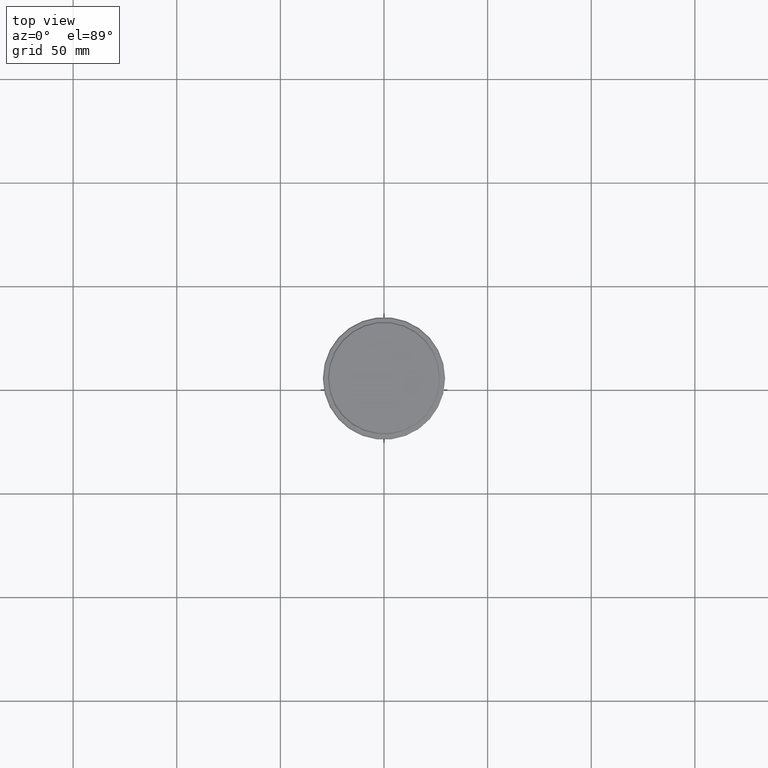
[diagram: clean part render]
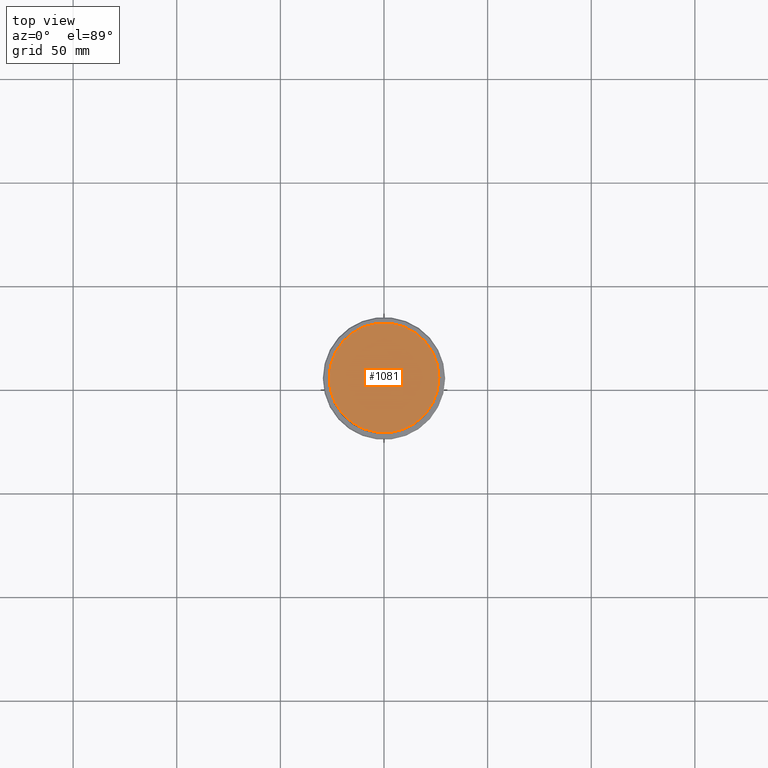
[diagram: same view with one face highlighted and labeled with its STEP entity id]
A machine part, top view. The second image highlights one B-rep face of the part: STEP entity #1081.
In plain terms, the highlighted planar face has unit normal (0, -0, 1).
Its self-contained STEP definition (entity closure, byte-faithful):
#143 = DIRECTION ( 'NONE',  ( 1.000000000000000000, 0.000000000000000000, 0.000000000000000000 ) ) ;
#176 = DIRECTION ( 'NONE',  ( 1.000000000000000000, 0.000000000000000000, 0.000000000000000000 ) ) ;
#268 = CARTESIAN_POINT ( 'NONE',  ( -26.50000000000007816, 0.000000000000000000, 0.000000000000000000 ) ) ;
#319 = VERTEX_POINT ( 'NONE', #268 ) ;
#374 = EDGE_LOOP ( 'NONE', ( #454, #1007 ) ) ;
#454 = ORIENTED_EDGE ( 'NONE', *, *, #1207, .T. ) ;
#487 = AXIS2_PLACEMENT_3D ( 'NONE', #935, #594, #1034 ) ;
#540 = CARTESIAN_POINT ( 'NONE',  ( 0.000000000000000000, 0.000000000000000000, 0.000000000000000000 ) ) ;
#574 = PLANE ( 'NONE',  #807 ) ;
#594 = DIRECTION ( 'NONE',  ( -0.000000000000000000, -0.000000000000000000, 1.000000000000000000 ) ) ;
#739 = CIRCLE ( 'NONE', #487, 26.50000000000007816 ) ;
#763 = AXIS2_PLACEMENT_3D ( 'NONE', #1031, #1049, #176 ) ;
#765 = DIRECTION ( 'NONE',  ( 0.000000000000000000, -0.000000000000000000, 1.000000000000000000 ) ) ;
#807 = AXIS2_PLACEMENT_3D ( 'NONE', #540, #765, #143 ) ;
#935 = CARTESIAN_POINT ( 'NONE',  ( 0.000000000000000000, 0.000000000000000000, 0.000000000000000000 ) ) ;
#1007 = ORIENTED_EDGE ( 'NONE', *, *, #1274, .T. ) ;
#1016 = CARTESIAN_POINT ( 'NONE',  ( 26.50000000000007816, 3.275930187719175074E-15, 0.000000000000000000 ) ) ;
#1031 = CARTESIAN_POINT ( 'NONE',  ( 0.000000000000000000, 0.000000000000000000, 0.000000000000000000 ) ) ;
#1034 = DIRECTION ( 'NONE',  ( 1.000000000000000000, 0.000000000000000000, 0.000000000000000000 ) ) ;
#1035 = VERTEX_POINT ( 'NONE', #1016 ) ;
#1049 = DIRECTION ( 'NONE',  ( -0.000000000000000000, -0.000000000000000000, 1.000000000000000000 ) ) ;
#1081 = ADVANCED_FACE ( 'NONE', ( #1120 ), #574, .T. ) ;
#1120 = FACE_OUTER_BOUND ( 'NONE', #374, .T. ) ;
#1134 = CIRCLE ( 'NONE', #763, 26.50000000000007816 ) ;
#1207 = EDGE_CURVE ( 'NONE', #319, #1035, #1134, .T. ) ;
#1274 = EDGE_CURVE ( 'NONE', #1035, #319, #739, .T. ) ;